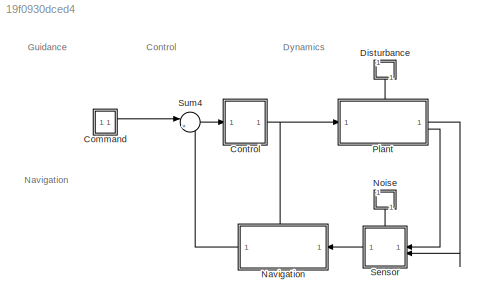
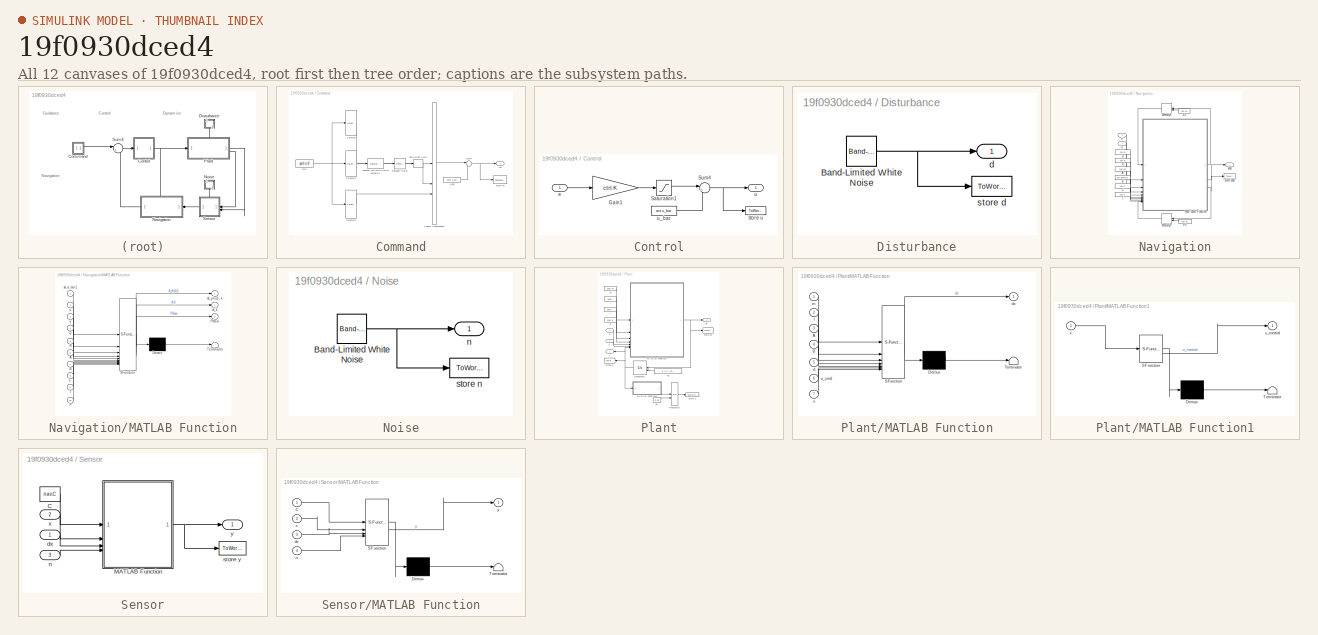
[diagram: thumbnail index - all 12 canvases of the model, root first then tree order]
MODEL slx_19f0930dced4
KIND model
CONFIG AbsTol = auto
CONFIG EnableMultiTasking = off
CONFIG FixedStep = auto
CONFIG MaxStep = auto
CONFIG MinStep = auto
CONFIG RelTol = 1e-3
CONFIG SampleTimeConstraint = Unconstrained
CONFIG SolverName = VariableStepAuto
CONFIG StartTime = 0.0
CONFIG StopTime = misc.T
BLOCK [SubSystem] Command
BLOCK [Selector] Command/Selector
  IndexOptions = Index vector (dialog)
  Indices = [1 2 3]
  InputPortWidth = 13
  OutputSizes = 1
BLOCK [Selector] Command/Selector1
  IndexOptions = Index vector (dialog)
  Indices = 4
  InputPortWidth = 13
  OutputSizes = 1
BLOCK [Selector] Command/Selector2
  IndexOptions = Index vector (dialog)
  Indices = [5:13]
  InputPortWidth = 13
  OutputSizes = 1
BLOCK [Sum] Command/Sum4
  Inputs = |++
  NameLocation = top
BLOCK [Reference] Command/Transfer Fcn (with initial outputs)4  REF=simulink_extras/Additional
Linear/Transfer Fcn
(with initial outputs)
  SourceBlock = simulink_extras/Additional\nLinear/Transfer Fcn\n(with initial outputs)
  SourceType = Transfer Function with Initial Outputs
BLOCK [TransportDelay] Command/Transport Delay
  DelayTime = 5
BLOCK [Concatenate] Command/Vector Concatenate
  Mode = Multidimensional array
  NumInputs = 3
BLOCK [ZeroOrderHold] Command/Zero-Order Hold
  SampleTime = nav.T
BLOCK [Constant] Command/cmd
  SampleTime = guid.T
  Value = guid.x_ref
BLOCK [Outport] Command/ref
  SampleTime = guid.T
BLOCK [ToWorkspace] Command/store ref
  FixptAsFi = on
  MaxDataPoints = inf
  SampleTime = guid.T
  SaveFormat = Timeseries
  VariableName = x_cmd
BLOCK [Constant] Command/x_bar
  SampleTime = guid.T
  Value = body.x_bar
BLOCK [SubSystem] Control
BLOCK [Gain] Control/Gain1
  Gain = ctrl.K
  Multiplication = Matrix(K*u) (u vector)
BLOCK [Saturate] Control/Saturation1
  LowerLimit = act.lower
  UpperLimit = act.upper
BLOCK [Sum] Control/Sum4
  Inputs = |++
  NameLocation = top
BLOCK [Inport] Control/e
  SampleTime = ctrl.T
BLOCK [ToWorkspace] Control/store u
  FixptAsFi = on
  MaxDataPoints = inf
  SampleTime = -1
  SaveFormat = Timeseries
  VariableName = u
BLOCK [Outport] Control/u
BLOCK [Constant] Control/u_bar
  SampleTime = ctrl.T
  Value = act.u_bar
BLOCK [SubSystem] Disturbance
  NameLocation = right
BLOCK [Reference] Disturbance/Band-Limited White Noise  REF=simulink/Sources/Band-Limited
White Noise
  SourceBlock = simulink/Sources/Band-Limited\nWhite Noise
  SourceType = Band-Limited White Noise.
BLOCK [Outport] Disturbance/d
BLOCK [ToWorkspace] Disturbance/store d
  FixptAsFi = on
  MaxDataPoints = inf
  SampleTime = -1
  SaveFormat = Timeseries
  VariableName = d
BLOCK [SubSystem] Navigation
  PortSchema = {"entries":[{"content":{"sides":[{"content":{"connectorIds":["In1"]},"type":"ConnectorPlacement.EquallySpacedRectSide","uuid":"ed9a3bfc-e7a2-4410-871f-111b32929a82"},{"content":{"connectorIds":["Out1"],"side":"RIGHT"},"type":"ConnectorPlacement.EquallySpacedRectSide","uuid":"9caadf78-b71d-47f7-a4d6-15bfba055fff"},{"content":{"connectorIds":["In2"],"side":"TOP"},"type":"ConnectorPlacement.EquallySp...<+245ch>
BLOCK [Constant] Navigation/A
  OutDataTypeStr = Inherit: Inherit via back propagation
  SampleTime = nav.T
  Value = nav.phi
  VectorParams1D = off
BLOCK [Constant] Navigation/B
  OutDataTypeStr = Inherit: Inherit via back propagation
  SampleTime = nav.T
  Value = nav.gamma
  VectorParams1D = off
BLOCK [Constant] Navigation/C
  OutDataTypeStr = Inherit: Inherit via back propagation
  SampleTime = nav.T
  Value = nav.C
  VectorParams1D = off
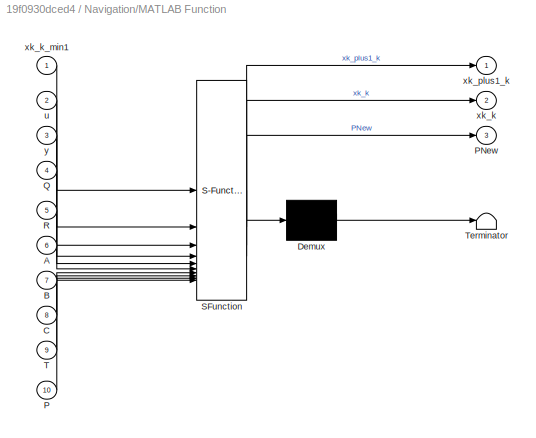
BLOCK [SubSystem] Navigation/MATLAB Function
  ErrorFcn = Stateflow.Translate.translate
  PermitHierarchicalResolution = ExplicitOnly
  SFBlockType = MATLAB Function
  TreatAsAtomicUnit = on
BLOCK [Demux] Navigation/MATLAB Function/ Demux 
  Outputs = 1
BLOCK [S-Function] Navigation/MATLAB Function/ SFunction 
  EnableBusSupport = on
  FunctionName = sf_sfun
  PortCounts = [10 4]
  SFcnIsStateOwnerBlock = off
  SFunctionDeploymentMode = off
  Tag = Stateflow S-Function 3
BLOCK [Terminator] Navigation/MATLAB Function/ Terminator 
BLOCK [Inport] Navigation/MATLAB Function/A
  Port = 6
BLOCK [Inport] Navigation/MATLAB Function/B
  Port = 7
BLOCK [Inport] Navigation/MATLAB Function/C
  Port = 8
BLOCK [Inport] Navigation/MATLAB Function/P
  Port = 10
BLOCK [Outport] Navigation/MATLAB Function/PNew
  Port = 3
BLOCK [Inport] Navigation/MATLAB Function/Q
  Port = 4
BLOCK [Inport] Navigation/MATLAB Function/R
  Port = 5
BLOCK [Inport] Navigation/MATLAB Function/T
  Port = 9
BLOCK [Inport] Navigation/MATLAB Function/u
  Port = 2
BLOCK [Outport] Navigation/MATLAB Function/xk_k
  Port = 2
BLOCK [Inport] Navigation/MATLAB Function/xk_k_min1
BLOCK [Outport] Navigation/MATLAB Function/xk_plus1_k
BLOCK [Inport] Navigation/MATLAB Function/y
  Port = 3
BLOCK [Delay] Navigation/MemoryP
  DelayLength = 1
  InitialConditionSource = Input port
  InputPortMap = u0,p4
  SampleTime = nav.T
BLOCK [Delay] Navigation/MemoryX
  DelayLength = 1
  InitialConditionSource = Input port
  InputPortMap = u0,p4
  SampleTime = nav.T
BLOCK [Constant] Navigation/P0
  OutDataTypeStr = Inherit: Inherit via back propagation
  SampleTime = nav.T
  Value = nav.P0
BLOCK [Constant] Navigation/Q
  OutDataTypeStr = Inherit: Inherit via back propagation
  SampleTime = nav.T
  Value = nav.Q
  VectorParams1D = off
BLOCK [Constant] Navigation/R
  OutDataTypeStr = Inherit: Inherit via back propagation
  SampleTime = nav.T
  Value = nav.R
  VectorParams1D = off
BLOCK [Constant] Navigation/T
  OutDataTypeStr = Inherit: Inherit via back propagation
  SampleTime = nav.T
  Value = nav.T
  VectorParams1D = off
BLOCK [Constant] Navigation/X0
  OutDataTypeStr = Inherit: Inherit via back propagation
  SampleTime = nav.T
  Value = nav.x0
  VectorParams1D = off
BLOCK [ToWorkspace] Navigation/store xhat
  FixptAsFi = on
  MaxDataPoints = inf
  SampleTime = -1
  SaveFormat = Timeseries
  VariableName = xh
BLOCK [Inport] Navigation/u
  NameLocation = top
  Port = 2
  SampleTime = nav.T
BLOCK [Outport] Navigation/xhat
  VectorParamsAs1DForOutWhenUnconnected = off
BLOCK [Inport] Navigation/y
BLOCK [SubSystem] Noise
  NameLocation = left
BLOCK [Reference] Noise/Band-Limited White Noise  REF=simulink/Sources/Band-Limited
White Noise
  SourceBlock = simulink/Sources/Band-Limited\nWhite Noise
  SourceType = Band-Limited White Noise.
BLOCK [Outport] Noise/n
BLOCK [ToWorkspace] Noise/store n
  FixptAsFi = on
  MaxDataPoints = inf
  SampleTime = -1
  SaveFormat = Timeseries
  VariableName = n
BLOCK [SubSystem] Plant
  PortSchema = {"entries":[{"content":{"sides":[{"content":{"connectorIds":["In1"]},"type":"ConnectorPlacement.EquallySpacedRectSide","uuid":"53915b1a-b285-44c5-8350-0c9f1bc1b8aa"},{"content":{"connectorIds":["Out1","Out2"],"side":"RIGHT"},"type":"ConnectorPlacement.EquallySpacedRectSide","uuid":"1ce863af-0af9-488c-b338-1118d88ebce9"},{"content":{"connectorIds":["In2"],"side":"TOP"},"type":"ConnectorPlacement.Eq...<+252ch>
BLOCK [Constant] Plant/A 
  Value = body.A
BLOCK [Constant] Plant/B
  Value = body.B
BLOCK [Constant] Plant/I
  Value = body.I
BLOCK [Integrator] Plant/Integrator1
  InitialConditionSource = external
BLOCK [Integrator] Plant/Integrator2
  InitialConditionSource = external
  NameLocation = top
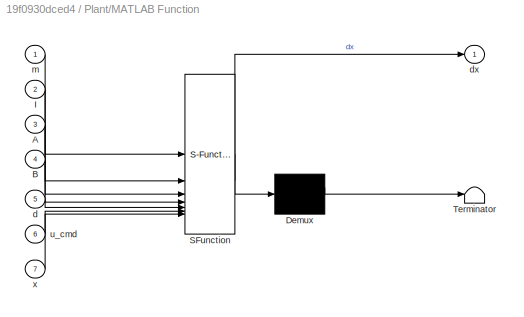
BLOCK [SubSystem] Plant/MATLAB Function
  ErrorFcn = Stateflow.Translate.translate
  PermitHierarchicalResolution = ExplicitOnly
  SFBlockType = MATLAB Function
  TreatAsAtomicUnit = on
BLOCK [Demux] Plant/MATLAB Function/ Demux 
  Outputs = 1
BLOCK [S-Function] Plant/MATLAB Function/ SFunction 
  EnableBusSupport = on
  FunctionName = sf_sfun
  PortCounts = [7 2]
  SFcnIsStateOwnerBlock = off
  SFunctionDeploymentMode = off
  Tag = Stateflow S-Function 1
BLOCK [Terminator] Plant/MATLAB Function/ Terminator 
BLOCK [Inport] Plant/MATLAB Function/A
  Port = 3
BLOCK [Inport] Plant/MATLAB Function/B
  Port = 4
BLOCK [Inport] Plant/MATLAB Function/I
  Port = 2
BLOCK [Inport] Plant/MATLAB Function/d
  Port = 5
BLOCK [Outport] Plant/MATLAB Function/dx
BLOCK [Inport] Plant/MATLAB Function/m
BLOCK [Inport] Plant/MATLAB Function/u_cmd
  Port = 6
BLOCK [Inport] Plant/MATLAB Function/x
  Port = 7
BLOCK [SubSystem] Plant/MATLAB Function1
  ErrorFcn = Stateflow.Translate.translate
  PermitHierarchicalResolution = ExplicitOnly
  SFBlockType = MATLAB Function
  TreatAsAtomicUnit = on
BLOCK [Demux] Plant/MATLAB Function1/ Demux 
  Outputs = 1
BLOCK [S-Function] Plant/MATLAB Function1/ SFunction 
  EnableBusSupport = on
  FunctionName = sf_sfun
  PortCounts = [1 2]
  SFcnIsStateOwnerBlock = off
  SFunctionDeploymentMode = off
  Tag = Stateflow S-Function 4
BLOCK [Terminator] Plant/MATLAB Function1/ Terminator 
BLOCK [Outport] Plant/MATLAB Function1/u_inertial
BLOCK [Inport] Plant/MATLAB Function1/x
BLOCK [Inport] Plant/d
  Port = 2
BLOCK [Outport] Plant/dx
  Port = 2
BLOCK [Constant] Plant/m
  Value = body.m
BLOCK [Constant] Plant/p0
  Value = ic.p0
BLOCK [ToWorkspace] Plant/store dx
  FixptAsFi = on
  MaxDataPoints = inf
  SampleTime = -1
  SaveFormat = Timeseries
  VariableName = dx
BLOCK [ToWorkspace] Plant/store p
  FixptAsFi = on
  MaxDataPoints = inf
  SampleTime = -1
  SaveFormat = Timeseries
  VariableName = p
BLOCK [ToWorkspace] Plant/store x
  FixptAsFi = on
  MaxDataPoints = inf
  SampleTime = -1
  SaveFormat = Timeseries
  VariableName = x
BLOCK [Inport] Plant/u
BLOCK [Outport] Plant/x
BLOCK [Constant] Plant/x0
  Value = ic.x_0 + body.x_bar
BLOCK [SubSystem] Sensor
  PortSchema = {"entries":[{"content":{"sides":[{"content":{"connectorIds":["In1","In2"]},"type":"ConnectorPlacement.EquallySpacedRectSide","uuid":"c10a2f4f-01ed-46cf-9353-9999ca068f80"},{"content":{"connectorIds":["Out1"],"side":"RIGHT"},"type":"ConnectorPlacement.EquallySpacedRectSide","uuid":"1bf68d2b-7a9c-4702-b99e-db3ed675bf63"},{"content":{"connectorIds":["In3"],"side":"TOP"},"type":"ConnectorPlacement.Equ...<+377ch>
BLOCK [Constant] Sensor/C
  SampleTime = nav.T
  Value = nav.C
BLOCK [SubSystem] Sensor/MATLAB Function
  ErrorFcn = Stateflow.Translate.translate
  PermitHierarchicalResolution = ExplicitOnly
  SFBlockType = MATLAB Function
  TreatAsAtomicUnit = on
BLOCK [Demux] Sensor/MATLAB Function/ Demux 
  Outputs = 1
BLOCK [S-Function] Sensor/MATLAB Function/ SFunction 
  EnableBusSupport = on
  FunctionName = sf_sfun
  PortCounts = [4 2]
  SFcnIsStateOwnerBlock = off
  SFunctionDeploymentMode = off
  Tag = Stateflow S-Function 2
BLOCK [Terminator] Sensor/MATLAB Function/ Terminator 
BLOCK [Inport] Sensor/MATLAB Function/C
BLOCK [Inport] Sensor/MATLAB Function/dx
  Port = 3
BLOCK [Inport] Sensor/MATLAB Function/n
  Port = 4
BLOCK [Inport] Sensor/MATLAB Function/x
  Port = 2
BLOCK [Outport] Sensor/MATLAB Function/y
BLOCK [Inport] Sensor/dx
  SampleTime = nav.T
BLOCK [Inport] Sensor/n
  Port = 3
BLOCK [ToWorkspace] Sensor/store y
  FixptAsFi = on
  MaxDataPoints = inf
  SampleTime = -1
  SaveFormat = Timeseries
  VariableName = y
BLOCK [Inport] Sensor/x
  Port = 2
  SampleTime = nav.T
BLOCK [Outport] Sensor/y
  NameLocation = top
BLOCK [Sum] Sum4
  Inputs = |+-
ANNOTATION (root): Control
ANNOTATION (root): Dynamics
ANNOTATION (root): Guidance
ANNOTATION (root): Navigation
LINE Command/Selector1:1 -> Command/Transfer Fcn (with initial outputs)4:1
LINE Command/Selector2:1 -> Command/Vector Concatenate:3
LINE Command/Selector:1 -> Command/Vector Concatenate:1
NET Command/Sum4:1 -> Command/ref:1, Command/store ref:1
LINE Command/Transfer Fcn (with initial outputs)4:1 -> Command/Transport Delay:1
LINE Command/Transport Delay:1 -> Command/Zero-Order Hold:1
LINE Command/Vector Concatenate:1 -> Command/Sum4:1
LINE Command/Zero-Order Hold:1 -> Command/Vector Concatenate:2
NET Command/cmd:1 -> Command/Selector1:1, Command/Selector2:1, Command/Selector:1
LINE Command/x_bar:1 -> Command/Sum4:2
LINE Command:1 -> Sum4:1
LINE Control/Gain1:1 -> Control/Saturation1:1
LINE Control/Saturation1:1 -> Control/Sum4:1
NET Control/Sum4:1 -> Control/store u:1, Control/u:1
LINE Control/e:1 -> Control/Gain1:1
LINE Control/u_bar:1 -> Control/Sum4:2
NET Control:1 -> Navigation:2, Plant:1
NET Disturbance/Band-Limited White Noise:1 -> Disturbance/d:1, Disturbance/store d:1
LINE Disturbance:1 -> Plant:2
LINE Navigation/A:1 -> Navigation/MATLAB Function:6
LINE Navigation/B:1 -> Navigation/MATLAB Function:7
LINE Navigation/C:1 -> Navigation/MATLAB Function:8
LINE Navigation/MATLAB Function:1 -> Navigation/MemoryX:1
NET Navigation/MATLAB Function:2 -> Navigation/store xhat:1, Navigation/xhat:1
LINE Navigation/MATLAB Function:3 -> Navigation/MemoryP:1
LINE Navigation/MemoryP:1 -> Navigation/MATLAB Function:10
LINE Navigation/MemoryX:1 -> Navigation/MATLAB Function:1
LINE Navigation/P0:1 -> Navigation/MemoryP:2
LINE Navigation/Q:1 -> Navigation/MATLAB Function:4
LINE Navigation/R:1 -> Navigation/MATLAB Function:5
LINE Navigation/T:1 -> Navigation/MATLAB Function:9
LINE Navigation/X0:1 -> Navigation/MemoryX:2
LINE Navigation/u:1 -> Navigation/MATLAB Function:2
LINE Navigation/y:1 -> Navigation/MATLAB Function:3
LINE Navigation:1 -> Sum4:2
NET Noise/Band-Limited White Noise:1 -> Noise/n:1, Noise/store n:1
LINE Noise:1 -> Sensor:3
LINE Plant/A :1 -> Plant/MATLAB Function:3
LINE Plant/B:1 -> Plant/MATLAB Function:4
LINE Plant/I:1 -> Plant/MATLAB Function:2
NET Plant/Integrator1:1 -> Plant/MATLAB Function1:1, Plant/MATLAB Function:7, Plant/store x:1, Plant/x:1
LINE Plant/Integrator2:1 -> Plant/store p:1
LINE Plant/MATLAB Function1:1 -> Plant/Integrator2:1
NET Plant/MATLAB Function:1 -> Plant/Integrator1:1, Plant/dx:1, Plant/store dx:1
LINE Plant/d:1 -> Plant/MATLAB Function:5
LINE Plant/m:1 -> Plant/MATLAB Function:1
LINE Plant/p0:1 -> Plant/Integrator2:2
LINE Plant/u:1 -> Plant/MATLAB Function:6
LINE Plant/x0:1 -> Plant/Integrator1:2
LINE Plant:1 -> Sensor:2
LINE Plant:2 -> Sensor:1
LINE Sensor/C:1 -> Sensor/MATLAB Function:1
NET Sensor/MATLAB Function:1 -> Sensor/store y:1, Sensor/y:1
LINE Sensor/dx:1 -> Sensor/MATLAB Function:3
LINE Sensor/n:1 -> Sensor/MATLAB Function:4
LINE Sensor/x:1 -> Sensor/MATLAB Function:2
LINE Sensor:1 -> Navigation:1
LINE Sum4:1 -> Control:1
note: NET lines group one-source signal fan-out (src -> all destinations, sorted); 1:1 wires keep LINE
CHART Plant/MATLAB Function states=1 transitions=1
  STATE_LABEL 'eML_blk_kernel()'
  STATE_LABEL 'SCRIPT:\nfunction dx =  NonlinearDynamics(m, I, A, B, d, u_cmd, x)\n% body properties: I, m\n% actuator dynamics: A, B\n% input: x, u, d \n% output: dx\n\n% rotation matrix from inertial to body frame\nT1 = [1 0 0; 0 cos(x(1)) sin(x(1)); 0 -sin(x(1)) cos(x(1))];\nT2 = [cos(x(2)) 0 -sin(x(2)); 0 1 0; sin(x(2)) 0 cos(x(2))];\nT3 = [cos(x(3)) sin(x(3)) 0; -sin(x(3)) cos(x(3)) 0; 0 0 1];\n\n% dx from coupled dyna...<+236ch>'
CHART Sensor/MATLAB Function states=1 transitions=1
  STATE_LABEL 'eML_blk_kernel()'
  STATE_LABEL 'SCRIPT:\nfunction y = Pixhawk(C, x, dx, n)\n\n% will be able to get x\n% integrating dx (imu data) can give some states,\n% gps / pitot tubes could give some states directly, etc.\n% may or may not be able to measure thrusts\n\ny = C*x + n; \n'
CHART Navigation/MATLAB Function states=1 transitions=1
  STATE_LABEL 'eML_blk_kernel()'
  STATE_LABEL 'SCRIPT:\nfunction [xk_plus1_k, xk_k, PNew] = KalmanFilter(xk_k_min1, u, y, Q, R, A, B, C, T, P)\n% Parameters\n%   T        - Sampling Time\n%   y, u     - Measurements, Control Signal\n%   A, B, C  - System Matrices\n%   Q, R     - Noise Covariance Matrices\n%   L        - Kalman gain to get x[k+1|k] from x[k|k-1] and y[k]\n%   M        - Kalman gain to get x[k|k] from x[k|k-1] and y[k]\n%   Z        - St...<+591ch>'
CHART Plant/MATLAB Function1 states=1 transitions=1
  STATE_LABEL 'eML_blk_kernel()'
  STATE_LABEL "SCRIPT:\nfunction u_inertial = BodyToInertial(x)\n\n% body frame position\nu_body = x(4:6,:); % body frame position\n\n% inertial frame position\nT1 = [1 0 0; 0 cos(x(1)) sin(x(1)); 0 -sin(x(1)) cos(x(1))];\nT2 = [cos(x(2)) 0 -sin(x(2)); 0 1 0; sin(x(2)) 0 cos(x(2))];\nT3 = [cos(x(3)) sin(x(3)) 0; -sin(x(3)) cos(x(3)) 0; 0 0 1];\nu_inertial = (T1*T2*T3)'*u_body;\n\nend\n"
CHART  states=0 transitions=0
CHART  states=0 transitions=0
CHART  states=0 transitions=0
CHART  states=0 transitions=0
